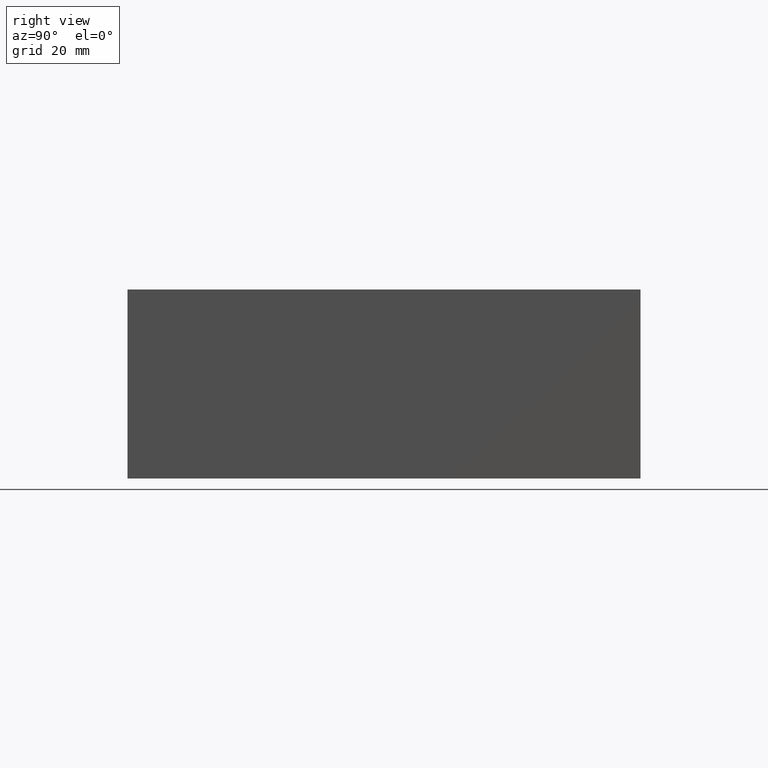
[diagram: clean part render]
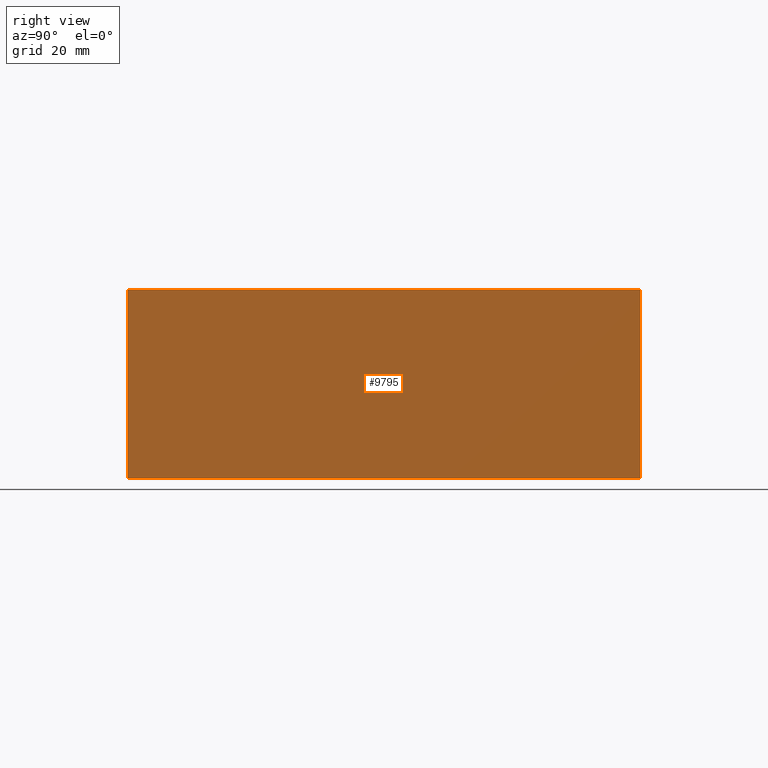
[diagram: same view with one face highlighted and labeled with its STEP entity id]
A machine part, right view. The second image highlights one B-rep face of the part: STEP entity #9795.
In plain terms, the highlighted planar face has unit normal (1, 0, 0).
Its self-contained STEP definition (entity closure, byte-faithful):
#1090=FACE_OUTER_BOUND('',#1643,.T.);
#1643=EDGE_LOOP('',(#8522,#8523,#8524,#8525));
#1793=LINE('',#12754,#2782);
#2217=LINE('',#15330,#3206);
#2646=LINE('',#16552,#3635);
#2647=LINE('',#16554,#3636);
#2782=VECTOR('',#10516,10.);
#3206=VECTOR('',#11218,10.);
#3635=VECTOR('',#12231,10.);
#3636=VECTOR('',#12234,10.);
#3744=VERTEX_POINT('',#12748);
#3746=VERTEX_POINT('',#12752);
#4175=VERTEX_POINT('',#15329);
#4548=VERTEX_POINT('',#16550);
#4711=EDGE_CURVE('',#3744,#3746,#1793,.T.);
#5347=EDGE_CURVE('',#3744,#4175,#2217,.T.);
#5884=EDGE_CURVE('',#3746,#4548,#2646,.T.);
#5885=EDGE_CURVE('',#4175,#4548,#2647,.T.);
#8522=ORIENTED_EDGE('',*,*,#4711,.T.);
#8523=ORIENTED_EDGE('',*,*,#5884,.T.);
#8524=ORIENTED_EDGE('',*,*,#5885,.F.);
#8525=ORIENTED_EDGE('',*,*,#5347,.F.);
#8883=PLANE('',#10288);
#9795=ADVANCED_FACE('',(#1090),#8883,.T.);
#10288=AXIS2_PLACEMENT_3D('',#16553,#12232,#12233);
#10516=DIRECTION('',(0.,1.,0.));
#11218=DIRECTION('',(0.,0.,1.));
#12231=DIRECTION('',(0.,0.,1.));
#12232=DIRECTION('center_axis',(1.,0.,0.));
#12233=DIRECTION('ref_axis',(0.,1.,0.));
#12234=DIRECTION('',(0.,1.,0.));
#12748=CARTESIAN_POINT('',(114.3,0.,0.));
#12752=CARTESIAN_POINT('',(114.3,120.65,0.));
#12754=CARTESIAN_POINT('',(114.3,0.,0.));
#15329=CARTESIAN_POINT('',(114.3,0.,44.45));
#15330=CARTESIAN_POINT('',(114.3,0.,0.));
#16550=CARTESIAN_POINT('',(114.3,120.65,44.45));
#16552=CARTESIAN_POINT('',(114.3,120.65,0.));
#16553=CARTESIAN_POINT('Origin',(114.3,0.,0.));
#16554=CARTESIAN_POINT('',(114.3,0.,44.45));